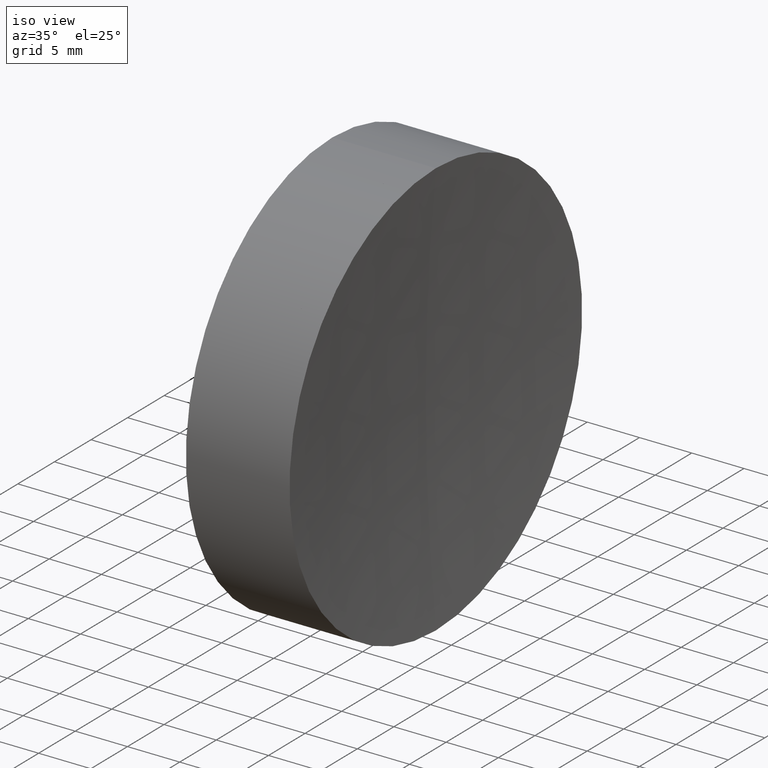
[diagram: clean part render]
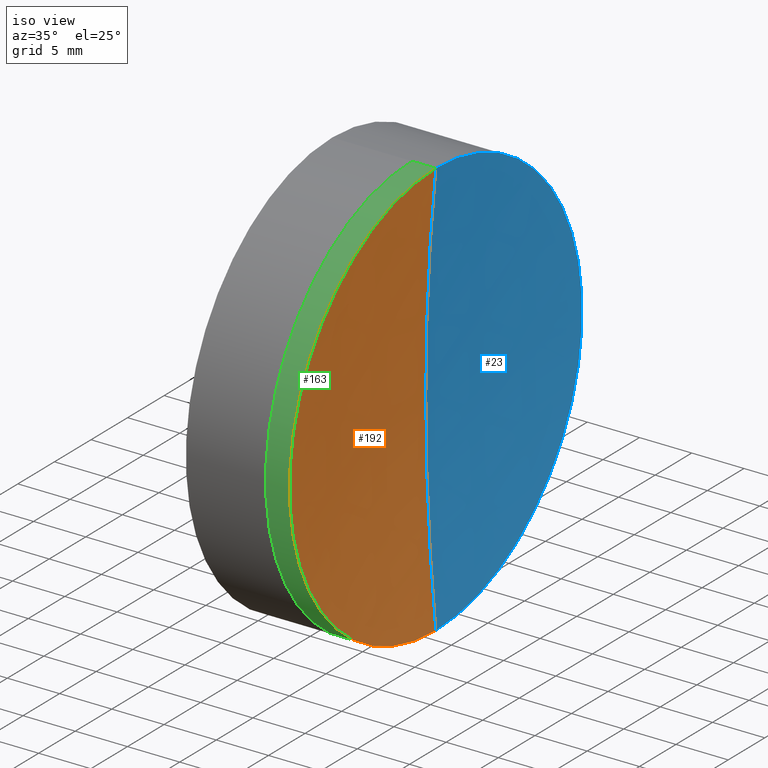
[diagram: same view with three faces highlighted in distinct colors, each labeled with its STEP entity id]
A machine part, iso view with three faces highlighted in distinct colors.
Their STEP definitions:

[orange] entity #192 — the highlighted spherical surface has radius 209 mm.
#1 = CARTESIAN_POINT ( 'NONE',  ( 253.5119500822572400, 0.0000000000000000000, 19.99999999999999600 ) ) ;
#6 = EDGE_CURVE ( 'NONE', #318, #11, #239, .T. ) ;
#11 = VERTEX_POINT ( 'NONE', #256 ) ;
#52 = ORIENTED_EDGE ( 'NONE', *, *, #6, .F. ) ;
#56 = DIRECTION ( 'NONE',  ( 0.0000000000000000000, 0.0000000000000000000, 1.000000000000000000 ) ) ;
#69 = ORIENTED_EDGE ( 'NONE', *, *, #218, .T. ) ;
#72 = CARTESIAN_POINT ( 'NONE',  ( 461.5528114532869500, 0.0000000000000000000, 0.0000000000000000000 ) ) ;
#112 = EDGE_CURVE ( 'NONE', #257, #318, #169, .T. ) ;
#153 = CARTESIAN_POINT ( 'NONE',  ( 461.5528114532869500, 0.0000000000000000000, 0.0000000000000000000 ) ) ;
#169 = CIRCLE ( 'NONE', #183, 19.99999999999999600 ) ;
#172 = ORIENTED_EDGE ( 'NONE', *, *, #112, .F. ) ;
#175 = AXIS2_PLACEMENT_3D ( 'NONE', #259, #201, #186 ) ;
#176 = CIRCLE ( 'NONE', #280, 209.0000000000000300 ) ;
#183 = AXIS2_PLACEMENT_3D ( 'NONE', #297, #258, #224 ) ;
#186 = DIRECTION ( 'NONE',  ( 0.0000000000000000000, 1.224646799147353200E-016, -1.000000000000000000 ) ) ;
#187 = CARTESIAN_POINT ( 'NONE',  ( 253.5119500822572400, 2.449293598294706500E-015, -19.99999999999999600 ) ) ;
#192 = ADVANCED_FACE ( 'NONE', ( #308 ), #235, .F. ) ;
#201 = DIRECTION ( 'NONE',  ( 0.0000000000000000000, -1.000000000000000000, -1.224646799147353200E-016 ) ) ;
#212 = DIRECTION ( 'NONE',  ( -0.0000000000000000000, -1.000000000000000000, -0.0000000000000000000 ) ) ;
#218 = EDGE_CURVE ( 'NONE', #257, #11, #176, .T. ) ;
#223 = EDGE_LOOP ( 'NONE', ( #52, #172, #69 ) ) ;
#224 = DIRECTION ( 'NONE',  ( 0.0000000000000000000, 0.0000000000000000000, 1.000000000000000000 ) ) ;
#235 = SPHERICAL_SURFACE ( 'NONE', #346, 209.0000000000000300 ) ;
#239 = CIRCLE ( 'NONE', #175, 209.0000000000000300 ) ;
#242 = DIRECTION ( 'NONE',  ( 0.0000000000000000000, 1.000000000000000000, -0.0000000000000000000 ) ) ;
#256 = CARTESIAN_POINT ( 'NONE',  ( 252.5528114532869500, 0.0000000000000000000, -1.279755905108984200E-014 ) ) ;
#257 = VERTEX_POINT ( 'NONE', #187 ) ;
#258 = DIRECTION ( 'NONE',  ( -1.000000000000000000, -0.0000000000000000000, -0.0000000000000000000 ) ) ;
#259 = CARTESIAN_POINT ( 'NONE',  ( 461.5528114532869500, 0.0000000000000000000, 0.0000000000000000000 ) ) ;
#280 = AXIS2_PLACEMENT_3D ( 'NONE', #72, #242, #56 ) ;
#297 = CARTESIAN_POINT ( 'NONE',  ( 253.5119500822572400, 0.0000000000000000000, 0.0000000000000000000 ) ) ;
#308 = FACE_OUTER_BOUND ( 'NONE', #223, .T. ) ;
#318 = VERTEX_POINT ( 'NONE', #1 ) ;
#332 = DIRECTION ( 'NONE',  ( 0.0000000000000000000, 0.0000000000000000000, -1.000000000000000000 ) ) ;
#346 = AXIS2_PLACEMENT_3D ( 'NONE', #153, #212, #332 ) ;

[blue] entity #23 — the highlighted spherical surface has radius 209 mm.
#1 = CARTESIAN_POINT ( 'NONE',  ( 253.5119500822572400, 0.0000000000000000000, 19.99999999999999600 ) ) ;
#6 = EDGE_CURVE ( 'NONE', #318, #11, #239, .T. ) ;
#11 = VERTEX_POINT ( 'NONE', #256 ) ;
#21 = DIRECTION ( 'NONE',  ( -1.000000000000000000, -0.0000000000000000000, -0.0000000000000000000 ) ) ;
#23 = ADVANCED_FACE ( 'NONE', ( #338 ), #283, .F. ) ;
#32 = EDGE_CURVE ( 'NONE', #318, #257, #139, .T. ) ;
#34 = ORIENTED_EDGE ( 'NONE', *, *, #6, .T. ) ;
#39 = ORIENTED_EDGE ( 'NONE', *, *, #218, .F. ) ;
#56 = DIRECTION ( 'NONE',  ( 0.0000000000000000000, 0.0000000000000000000, 1.000000000000000000 ) ) ;
#72 = CARTESIAN_POINT ( 'NONE',  ( 461.5528114532869500, 0.0000000000000000000, 0.0000000000000000000 ) ) ;
#82 = ORIENTED_EDGE ( 'NONE', *, *, #32, .F. ) ;
#106 = DIRECTION ( 'NONE',  ( 0.0000000000000000000, 0.0000000000000000000, -1.000000000000000000 ) ) ;
#139 = CIRCLE ( 'NONE', #326, 19.99999999999999600 ) ;
#150 = DIRECTION ( 'NONE',  ( -0.0000000000000000000, -1.000000000000000000, -0.0000000000000000000 ) ) ;
#175 = AXIS2_PLACEMENT_3D ( 'NONE', #259, #201, #186 ) ;
#176 = CIRCLE ( 'NONE', #280, 209.0000000000000300 ) ;
#184 = CARTESIAN_POINT ( 'NONE',  ( 253.5119500822572400, 0.0000000000000000000, 0.0000000000000000000 ) ) ;
#186 = DIRECTION ( 'NONE',  ( 0.0000000000000000000, 1.224646799147353200E-016, -1.000000000000000000 ) ) ;
#187 = CARTESIAN_POINT ( 'NONE',  ( 253.5119500822572400, 2.449293598294706500E-015, -19.99999999999999600 ) ) ;
#201 = DIRECTION ( 'NONE',  ( 0.0000000000000000000, -1.000000000000000000, -1.224646799147353200E-016 ) ) ;
#218 = EDGE_CURVE ( 'NONE', #257, #11, #176, .T. ) ;
#226 = DIRECTION ( 'NONE',  ( 0.0000000000000000000, 0.0000000000000000000, 1.000000000000000000 ) ) ;
#239 = CIRCLE ( 'NONE', #175, 209.0000000000000300 ) ;
#242 = DIRECTION ( 'NONE',  ( 0.0000000000000000000, 1.000000000000000000, -0.0000000000000000000 ) ) ;
#256 = CARTESIAN_POINT ( 'NONE',  ( 252.5528114532869500, 0.0000000000000000000, -1.279755905108984200E-014 ) ) ;
#257 = VERTEX_POINT ( 'NONE', #187 ) ;
#259 = CARTESIAN_POINT ( 'NONE',  ( 461.5528114532869500, 0.0000000000000000000, 0.0000000000000000000 ) ) ;
#280 = AXIS2_PLACEMENT_3D ( 'NONE', #72, #242, #56 ) ;
#283 = SPHERICAL_SURFACE ( 'NONE', #290, 209.0000000000000300 ) ;
#290 = AXIS2_PLACEMENT_3D ( 'NONE', #310, #150, #106 ) ;
#310 = CARTESIAN_POINT ( 'NONE',  ( 461.5528114532869500, 0.0000000000000000000, 0.0000000000000000000 ) ) ;
#318 = VERTEX_POINT ( 'NONE', #1 ) ;
#319 = EDGE_LOOP ( 'NONE', ( #82, #34, #39 ) ) ;
#326 = AXIS2_PLACEMENT_3D ( 'NONE', #184, #21, #226 ) ;
#338 = FACE_OUTER_BOUND ( 'NONE', #319, .T. ) ;

[green] entity #163 — the highlighted cylindrical surface (partial cylindrical patch) has radius 20 mm, axis along (-1, -0, -0).
#1 = CARTESIAN_POINT ( 'NONE',  ( 253.5119500822572400, 0.0000000000000000000, 19.99999999999999600 ) ) ;
#4 = VERTEX_POINT ( 'NONE', #159 ) ;
#13 = CARTESIAN_POINT ( 'NONE',  ( 243.5932381383219400, 0.0000000000000000000, 0.0000000000000000000 ) ) ;
#16 = DIRECTION ( 'NONE',  ( 0.0000000000000000000, 0.0000000000000000000, 1.000000000000000000 ) ) ;
#31 = LINE ( 'NONE', #316, #282 ) ;
#44 = AXIS2_PLACEMENT_3D ( 'NONE', #118, #98, #101 ) ;
#53 = EDGE_CURVE ( 'NONE', #257, #4, #137, .T. ) ;
#58 = CARTESIAN_POINT ( 'NONE',  ( 251.2286233649336100, -2.449293598294704100E-015, 19.99999999999998200 ) ) ;
#65 = EDGE_LOOP ( 'NONE', ( #89, #121, #294, #107 ) ) ;
#74 = VECTOR ( 'NONE', #102, 1000.000000000000000 ) ;
#89 = ORIENTED_EDGE ( 'NONE', *, *, #53, .F. ) ;
#96 = CIRCLE ( 'NONE', #44, 20.00000000000000400 ) ;
#98 = DIRECTION ( 'NONE',  ( -1.000000000000000000, -0.0000000000000000000, -0.0000000000000000000 ) ) ;
#101 = DIRECTION ( 'NONE',  ( 0.0000000000000000000, 0.0000000000000000000, 1.000000000000000000 ) ) ;
#102 = DIRECTION ( 'NONE',  ( -1.000000000000000000, -0.0000000000000000000, -0.0000000000000000000 ) ) ;
#107 = ORIENTED_EDGE ( 'NONE', *, *, #270, .F. ) ;
#112 = EDGE_CURVE ( 'NONE', #257, #318, #169, .T. ) ;
#118 = CARTESIAN_POINT ( 'NONE',  ( 251.2286233649336100, 0.0000000000000000000, 0.0000000000000000000 ) ) ;
#121 = ORIENTED_EDGE ( 'NONE', *, *, #112, .T. ) ;
#123 = DIRECTION ( 'NONE',  ( -1.000000000000000000, -0.0000000000000000000, -0.0000000000000000000 ) ) ;
#137 = LINE ( 'NONE', #142, #74 ) ;
#142 = CARTESIAN_POINT ( 'NONE',  ( 243.5932381383219400, 2.449293598294706500E-015, -20.00000000000000000 ) ) ;
#149 = FACE_OUTER_BOUND ( 'NONE', #65, .T. ) ;
#159 = CARTESIAN_POINT ( 'NONE',  ( 251.2286233649336100, 0.0000000000000000000, -19.99999999999998200 ) ) ;
#163 = ADVANCED_FACE ( 'NONE', ( #149 ), #329, .T. ) ;
#169 = CIRCLE ( 'NONE', #183, 19.99999999999999600 ) ;
#183 = AXIS2_PLACEMENT_3D ( 'NONE', #297, #258, #224 ) ;
#187 = CARTESIAN_POINT ( 'NONE',  ( 253.5119500822572400, 2.449293598294706500E-015, -19.99999999999999600 ) ) ;
#197 = VERTEX_POINT ( 'NONE', #58 ) ;
#224 = DIRECTION ( 'NONE',  ( 0.0000000000000000000, 0.0000000000000000000, 1.000000000000000000 ) ) ;
#229 = AXIS2_PLACEMENT_3D ( 'NONE', #13, #287, #16 ) ;
#237 = EDGE_CURVE ( 'NONE', #318, #197, #31, .T. ) ;
#257 = VERTEX_POINT ( 'NONE', #187 ) ;
#258 = DIRECTION ( 'NONE',  ( -1.000000000000000000, -0.0000000000000000000, -0.0000000000000000000 ) ) ;
#270 = EDGE_CURVE ( 'NONE', #4, #197, #96, .T. ) ;
#282 = VECTOR ( 'NONE', #123, 1000.000000000000000 ) ;
#287 = DIRECTION ( 'NONE',  ( -1.000000000000000000, -0.0000000000000000000, -0.0000000000000000000 ) ) ;
#294 = ORIENTED_EDGE ( 'NONE', *, *, #237, .T. ) ;
#297 = CARTESIAN_POINT ( 'NONE',  ( 253.5119500822572400, 0.0000000000000000000, 0.0000000000000000000 ) ) ;
#316 = CARTESIAN_POINT ( 'NONE',  ( 243.5932381383219400, 0.0000000000000000000, 20.00000000000000000 ) ) ;
#318 = VERTEX_POINT ( 'NONE', #1 ) ;
#329 = CYLINDRICAL_SURFACE ( 'NONE', #229, 20.00000000000000000 ) ;